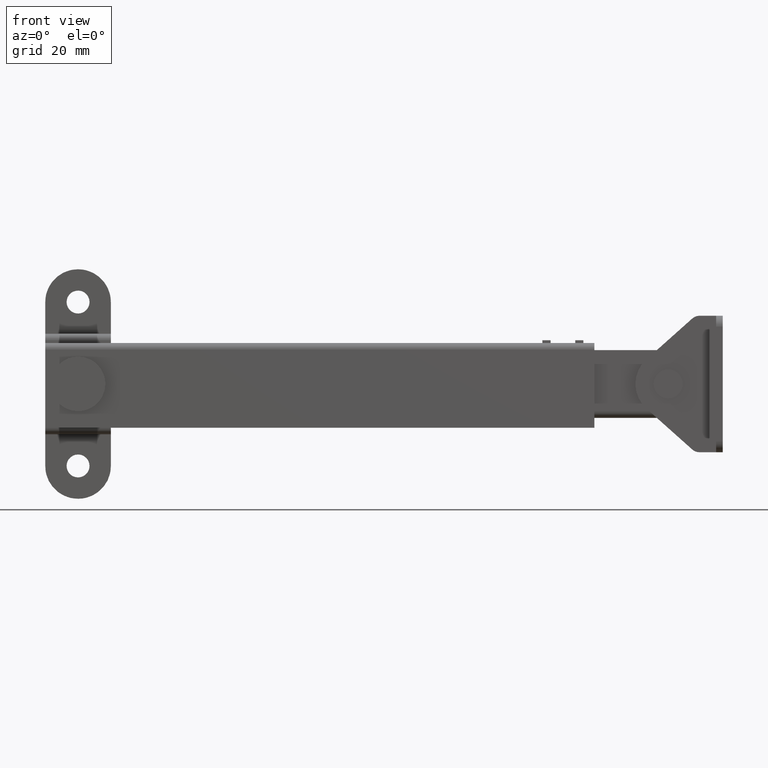
[diagram: clean part render]
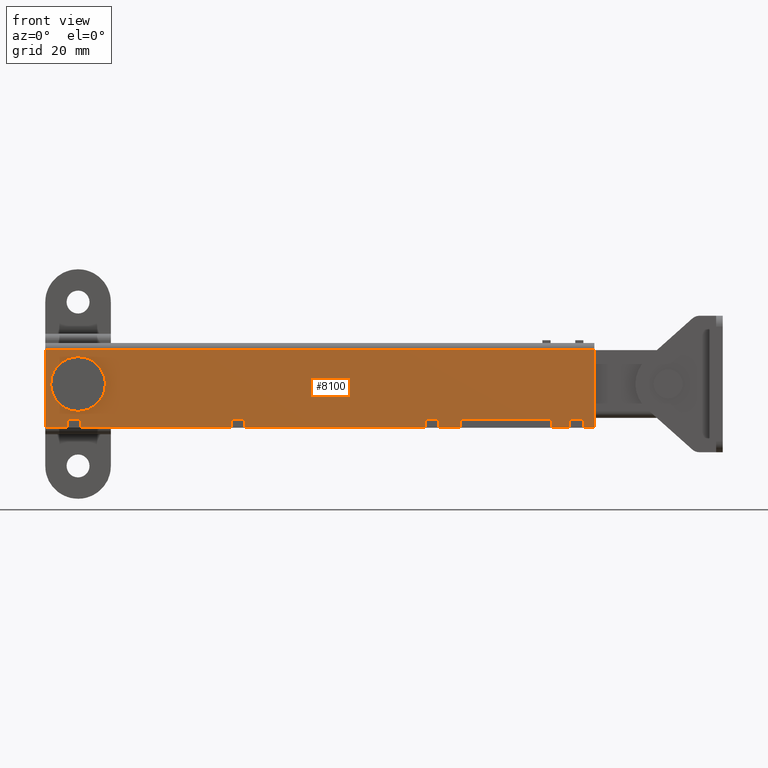
[diagram: same view with one face highlighted and labeled with its STEP entity id]
A machine part, front view. The second image highlights one B-rep face of the part: STEP entity #8100.
In plain terms, the highlighted face is a freeform B-spline surface patch.
Its self-contained STEP definition (entity closure, byte-faithful):
#7002=CARTESIAN_POINT('',(2.753418121982758,-15.749999999997950,2.901497069218899));
#7003=VERTEX_POINT('',#7002);
#7009=CARTESIAN_POINT('',(-1.136868E-013,-15.749999999997950,3.999999999998598));
#7010=VERTEX_POINT('',#7009);
#7011=CARTESIAN_POINT('',(-1.136868E-013,-15.749999999997950,3.999999999998598));
#7012=CARTESIAN_POINT('',(0.284708409647732,-15.749999999997939,4.000037275337659));
#7013=CARTESIAN_POINT('',(0.885742899777154,-15.749999999997989,3.935580093335195));
#7014=CARTESIAN_POINT('',(1.849497873052460,-15.749999999997909,3.603261357454560));
#7015=CARTESIAN_POINT('',(2.455218073645413,-15.749999999997980,3.184709459252220));
#7016=CARTESIAN_POINT('',(2.753418121982758,-15.749999999997950,2.901497069218899));
#7017=B_SPLINE_CURVE_WITH_KNOTS('',3,(#7011,#7012,#7013,#7014,#7015,#7016),.UNSPECIFIED.,.F.,.U.,(4,1,1,4),(0.000000020142276,0.854140583147335,1.803184962017123,3.036944103292220),.UNSPECIFIED.);
#7018=EDGE_CURVE('',#7010,#7003,#7017,.T.);
#7020=CARTESIAN_POINT('',(-3.999999999875321,-15.749999999997950,0.000001703742121));
#7021=VERTEX_POINT('',#7020);
#7022=CARTESIAN_POINT('',(-3.999999999875321,-15.749999999997950,0.000001703742121));
#7023=CARTESIAN_POINT('',(-4.000200919819712,-15.749999999997950,0.409081254723286));
#7024=CARTESIAN_POINT('',(-3.873412104805334,-15.749999999997961,1.227111714050110));
#7025=CARTESIAN_POINT('',(-3.344140223194023,-15.749999999998000,2.295138144838513));
#7026=CARTESIAN_POINT('',(-2.534919107768705,-15.749999999997810,3.166197705209155));
#7027=CARTESIAN_POINT('',(-1.423252003678839,-15.749999999997989,3.823309282277119));
#7028=CARTESIAN_POINT('',(-0.507297379341081,-15.749999999997900,4.000478486234480));
#7029=CARTESIAN_POINT('',(-1.136868E-013,-15.749999999997950,3.999999999998598));
#7030=B_SPLINE_CURVE_WITH_KNOTS('',3,(#7022,#7023,#7024,#7025,#7026,#7027,#7028,#7029),.UNSPECIFIED.,.F.,.U.,(4,1,1,1,1,4),(0.000000170140678,1.227186457031172,2.454411881155610,3.534287596504247,4.761505688452236,6.283223771128421),.UNSPECIFIED.);
#7031=EDGE_CURVE('',#7021,#7010,#7030,.T.);
#7033=CARTESIAN_POINT('',(-2.753418121982993,-15.749999999997950,-2.901497068972853));
#7034=VERTEX_POINT('',#7033);
#7035=CARTESIAN_POINT('',(-2.753418121982993,-15.749999999997950,-2.901497068972853));
#7036=CARTESIAN_POINT('',(-3.134044696954433,-15.749999999997970,-2.541009103002391));
#7037=CARTESIAN_POINT('',(-3.620607376855628,-15.749999999997890,-1.850795577253303));
#7038=CARTESIAN_POINT('',(-3.946756084092354,-15.749999999998010,-0.811547403682275));
#7039=CARTESIAN_POINT('',(-4.000022809587732,-15.749999999997890,-0.253616146144049));
#7040=CARTESIAN_POINT('',(-3.999999999875321,-15.749999999997950,0.000001703742121));
#7041=B_SPLINE_CURVE_WITH_KNOTS('',3,(#7035,#7036,#7037,#7038,#7039,#7040),.UNSPECIFIED.,.F.,.U.,(4,1,1,4),(0.000000047716615,1.572470633339956,2.485475994239147,3.246335534880955),.UNSPECIFIED.);
#7042=EDGE_CURVE('',#7034,#7021,#7041,.T.);
#7072=CARTESIAN_POINT('',(-1.136868E-013,-15.749999999997950,-3.999999999752543));
#7073=VERTEX_POINT('',#7072);
#7074=CARTESIAN_POINT('',(-1.136868E-013,-15.749999999997950,-3.999999999752543));
#7075=CARTESIAN_POINT('',(-0.411264258147782,-15.749999999997961,-4.000205008290513));
#7076=CARTESIAN_POINT('',(-1.138732512561134,-15.749999999997950,-3.886779009131525));
#7077=CARTESIAN_POINT('',(-2.066582658248072,-15.749999999997970,-3.464491391941102));
#7078=CARTESIAN_POINT('',(-2.546924802922293,-15.749999999997931,-3.097500168427930));
#7079=CARTESIAN_POINT('',(-2.753418121982993,-15.749999999997950,-2.901497068972853));
#7080=B_SPLINE_CURVE_WITH_KNOTS('',3,(#7074,#7075,#7076,#7077,#7078,#7079),.UNSPECIFIED.,.F.,.U.,(4,1,1,4),(0.000000020142306,1.233759161455220,2.182803540293925,3.036944103292226),.UNSPECIFIED.);
#7081=EDGE_CURVE('',#7073,#7034,#7080,.T.);
#7083=CARTESIAN_POINT('',(3.999999999875094,-15.749999999997950,-0.000001703496115));
#7084=VERTEX_POINT('',#7083);
#7085=CARTESIAN_POINT('',(3.999999999875094,-15.749999999997950,-0.000001703496115));
#7086=CARTESIAN_POINT('',(4.000029805100577,-15.749999999997980,-0.261795160728750));
#7087=CARTESIAN_POINT('',(3.946800954377870,-15.749999999997920,-0.801744131857732));
#7088=CARTESIAN_POINT('',(3.674081488832151,-15.749999999997950,-1.681763544473790));
#7089=CARTESIAN_POINT('',(3.141984373990101,-15.749999999998050,-2.557402886848257));
#7090=CARTESIAN_POINT('',(2.367664342568901,-15.749999999997939,-3.276562241786095));
#7091=CARTESIAN_POINT('',(1.325029778557115,-15.749999999997931,-3.842151879929410));
#7092=CARTESIAN_POINT('',(0.507329644821028,-15.749999999997950,-4.000530416178378));
#7093=CARTESIAN_POINT('',(-1.136868E-013,-15.749999999997950,-3.999999999752543));
#7094=B_SPLINE_CURVE_WITH_KNOTS('',3,(#7085,#7086,#7087,#7088,#7089,#7090,#7091,#7092,#7093),.UNSPECIFIED.,.F.,.U.,(4,1,1,1,1,1,4),(0.000000170140336,0.785382450393880,1.619894116930833,2.748937519952476,3.828813094562376,4.761505688452183,6.283223771128391),.UNSPECIFIED.);
#7095=EDGE_CURVE('',#7084,#7073,#7094,.T.);
#7097=CARTESIAN_POINT('',(2.753418121982758,-15.749999999997950,2.901497069218899));
#7098=CARTESIAN_POINT('',(3.023361710716601,-15.749999999998030,2.645545221596865));
#7099=CARTESIAN_POINT('',(3.384529651104571,-15.749999999997851,2.191158926468680));
#7100=CARTESIAN_POINT('',(3.863097474312279,-15.749999999998010,1.217072800822163));
#7101=CARTESIAN_POINT('',(4.000479284892311,-15.749999999997870,0.507329373132804));
#7102=CARTESIAN_POINT('',(3.999999999875094,-15.749999999997950,-0.000001703496115));
#7103=B_SPLINE_CURVE_WITH_KNOTS('',3,(#7097,#7098,#7099,#7100,#7101,#7102),.UNSPECIFIED.,.F.,.U.,(4,1,1,4),(0.000000047716600,1.115937064003553,1.724609580836624,3.246335534880999),.UNSPECIFIED.);
#7104=EDGE_CURVE('',#7003,#7084,#7103,.T.);
#7503=CARTESIAN_POINT('',(-6.0,-15.749999999997950,6.300000000045630));
#7504=VERTEX_POINT('',#7503);
#7517=CARTESIAN_POINT('',(94.500000000000000,-15.749999999997950,6.300000000045630));
#7518=VERTEX_POINT('',#7517);
#7519=CARTESIAN_POINT('',(94.500000000000000,-15.749999999997950,6.300000000045630));
#7520=CARTESIAN_POINT('',(-6.0,-15.749999999997950,6.300000000045630));
#7521=QUASI_UNIFORM_CURVE('',1,(#7519,#7520),.UNSPECIFIED.,.F.,.U.);
#7522=EDGE_CURVE('',#7518,#7504,#7521,.T.);
#7925=CARTESIAN_POINT('',(-11.019974805211490,-15.749999999997950,7.014284972337412));
#7926=CARTESIAN_POINT('',(-11.019974805211490,-15.749999999997950,-8.714285355961351));
#7927=CARTESIAN_POINT('',(99.519977500831573,-15.749999999997950,7.014284972337412));
#7928=CARTESIAN_POINT('',(99.519977500831573,-15.749999999997950,-8.714285355961351));
#7929=B_SPLINE_SURFACE_WITH_KNOTS('',1,1,((#7925,#7927),(#7926,#7928)),.UNSPECIFIED.,.F.,.F.,.U.,(2,2),(2,2),(0.0,15.728570328298771),(0.0,110.539952306043110),.UNSPECIFIED.);
#7930=CARTESIAN_POINT('',(0.499999999997158,-15.749999999997950,-8.000000000111660));
#7931=VERTEX_POINT('',#7930);
#7932=CARTESIAN_POINT('',(0.499999999996987,-15.749999999997950,-6.400000000036700));
#7933=VERTEX_POINT('',#7932);
#7934=CARTESIAN_POINT('',(0.499999999997158,-15.749999999997950,-8.000000000111660));
#7935=CARTESIAN_POINT('',(0.499999999996987,-15.749999999997950,-6.400000000036700));
#7936=QUASI_UNIFORM_CURVE('',1,(#7934,#7935),.UNSPECIFIED.,.F.,.U.);
#7937=EDGE_CURVE('',#7931,#7933,#7936,.T.);
#7938=ORIENTED_EDGE('',*,*,#7937,.F.);
#7939=CARTESIAN_POINT('',(28.000000000048601,-15.749999999997950,-8.000000000089500));
#7940=VERTEX_POINT('',#7939);
#7941=CARTESIAN_POINT('',(28.000000000048601,-15.749999999997950,-8.000000000089500));
#7942=CARTESIAN_POINT('',(0.499999999997158,-15.749999999997950,-8.000000000111660));
#7943=QUASI_UNIFORM_CURVE('',1,(#7941,#7942),.UNSPECIFIED.,.F.,.U.);
#7944=EDGE_CURVE('',#7940,#7931,#7943,.T.);
#7945=ORIENTED_EDGE('',*,*,#7944,.F.);
#7946=CARTESIAN_POINT('',(28.000000000055248,-15.749999999997950,-6.400000000023801));
#7947=VERTEX_POINT('',#7946);
#7948=CARTESIAN_POINT('',(28.000000000048601,-15.749999999997950,-8.000000000089500));
#7949=CARTESIAN_POINT('',(28.000000000055248,-15.749999999997950,-6.400000000023801));
#7950=QUASI_UNIFORM_CURVE('',1,(#7948,#7949),.UNSPECIFIED.,.F.,.U.);
#7951=EDGE_CURVE('',#7940,#7947,#7950,.T.);
#7952=ORIENTED_EDGE('',*,*,#7951,.T.);
#7953=CARTESIAN_POINT('',(30.499999999996952,-15.749999999997950,-6.400000000023710));
#7954=VERTEX_POINT('',#7953);
#7955=CARTESIAN_POINT('',(28.000000000055248,-15.749999999997950,-6.400000000023801));
#7956=CARTESIAN_POINT('',(30.499999999996952,-15.749999999997950,-6.400000000023710));
#7957=QUASI_UNIFORM_CURVE('',1,(#7955,#7956),.UNSPECIFIED.,.F.,.U.);
#7958=EDGE_CURVE('',#7947,#7954,#7957,.T.);
#7959=ORIENTED_EDGE('',*,*,#7958,.T.);
#7960=CARTESIAN_POINT('',(30.499999999997101,-15.749999999997950,-8.000000000087480));
#7961=VERTEX_POINT('',#7960);
#7962=CARTESIAN_POINT('',(30.499999999996952,-15.749999999997950,-6.400000000023710));
#7963=CARTESIAN_POINT('',(30.499999999997101,-15.749999999997950,-8.000000000087480));
#7964=QUASI_UNIFORM_CURVE('',1,(#7962,#7963),.UNSPECIFIED.,.F.,.U.);
#7965=EDGE_CURVE('',#7954,#7961,#7964,.T.);
#7966=ORIENTED_EDGE('',*,*,#7965,.T.);
#7967=CARTESIAN_POINT('',(63.500000000048409,-15.749999999997950,-8.000000000060881));
#7968=VERTEX_POINT('',#7967);
#7969=CARTESIAN_POINT('',(63.500000000048409,-15.749999999997950,-8.000000000060881));
#7970=CARTESIAN_POINT('',(30.499999999997101,-15.749999999997950,-8.000000000087480));
#7971=QUASI_UNIFORM_CURVE('',1,(#7969,#7970),.UNSPECIFIED.,.F.,.U.);
#7972=EDGE_CURVE('',#7968,#7961,#7971,.T.);
#7973=ORIENTED_EDGE('',*,*,#7972,.F.);
#7974=CARTESIAN_POINT('',(63.500000000055103,-15.749999999997950,-6.400000000036700));
#7975=VERTEX_POINT('',#7974);
#7976=CARTESIAN_POINT('',(63.500000000055103,-15.749999999997950,-6.400000000036700));
#7977=CARTESIAN_POINT('',(63.500000000048409,-15.749999999997950,-8.000000000060881));
#7978=QUASI_UNIFORM_CURVE('',1,(#7976,#7977),.UNSPECIFIED.,.F.,.U.);
#7979=EDGE_CURVE('',#7975,#7968,#7978,.T.);
#7980=ORIENTED_EDGE('',*,*,#7979,.F.);
#7981=CARTESIAN_POINT('',(65.999999999996987,-15.749999999997950,-6.400000000036700));
#7982=VERTEX_POINT('',#7981);
#7983=CARTESIAN_POINT('',(65.999999999996987,-15.749999999997950,-6.400000000036700));
#7984=CARTESIAN_POINT('',(63.500000000055103,-15.749999999997950,-6.400000000036700));
#7985=QUASI_UNIFORM_CURVE('',1,(#7983,#7984),.UNSPECIFIED.,.F.,.U.);
#7986=EDGE_CURVE('',#7982,#7975,#7985,.T.);
#7987=ORIENTED_EDGE('',*,*,#7986,.F.);
#7988=CARTESIAN_POINT('',(65.999999999997200,-15.749999999997950,-8.000000000058870));
#7989=VERTEX_POINT('',#7988);
#7990=CARTESIAN_POINT('',(65.999999999997200,-15.749999999997950,-8.000000000058870));
#7991=CARTESIAN_POINT('',(65.999999999996987,-15.749999999997950,-6.400000000036700));
#7992=QUASI_UNIFORM_CURVE('',1,(#7990,#7991),.UNSPECIFIED.,.F.,.U.);
#7993=EDGE_CURVE('',#7989,#7982,#7992,.T.);
#7994=ORIENTED_EDGE('',*,*,#7993,.F.);
#7995=CARTESIAN_POINT('',(69.900000000017812,-15.749999999997950,-8.000000000055730));
#7996=VERTEX_POINT('',#7995);
#7997=CARTESIAN_POINT('',(69.900000000017812,-15.749999999997950,-8.000000000055730));
#7998=CARTESIAN_POINT('',(65.999999999997200,-15.749999999997950,-8.000000000058870));
#7999=QUASI_UNIFORM_CURVE('',1,(#7997,#7998),.UNSPECIFIED.,.F.,.U.);
#8000=EDGE_CURVE('',#7996,#7989,#7999,.T.);
#8001=ORIENTED_EDGE('',*,*,#8000,.F.);
#8002=CARTESIAN_POINT('',(69.900000000020214,-15.749999999997950,-6.400000000036700));
#8003=VERTEX_POINT('',#8002);
#8004=CARTESIAN_POINT('',(69.900000000020214,-15.749999999997950,-6.400000000036700));
#8005=CARTESIAN_POINT('',(69.900000000017812,-15.749999999997950,-8.000000000055730));
#8006=QUASI_UNIFORM_CURVE('',1,(#8004,#8005),.UNSPECIFIED.,.F.,.U.);
#8007=EDGE_CURVE('',#8003,#7996,#8006,.T.);
#8008=ORIENTED_EDGE('',*,*,#8007,.F.);
#8009=CARTESIAN_POINT('',(86.599999999973605,-15.749999999997950,-6.400000000036700));
#8010=VERTEX_POINT('',#8009);
#8011=CARTESIAN_POINT('',(86.599999999973605,-15.749999999997950,-6.400000000036700));
#8012=CARTESIAN_POINT('',(69.900000000020214,-15.749999999997950,-6.400000000036700));
#8013=QUASI_UNIFORM_CURVE('',1,(#8011,#8012),.UNSPECIFIED.,.F.,.U.);
#8014=EDGE_CURVE('',#8010,#8003,#8013,.T.);
#8015=ORIENTED_EDGE('',*,*,#8014,.F.);
#8016=CARTESIAN_POINT('',(86.599999999976689,-15.749999999997950,-8.000000000042270));
#8017=VERTEX_POINT('',#8016);
#8018=CARTESIAN_POINT('',(86.599999999976689,-15.749999999997950,-8.000000000042270));
#8019=CARTESIAN_POINT('',(86.599999999973605,-15.749999999997950,-6.400000000036700));
#8020=QUASI_UNIFORM_CURVE('',1,(#8018,#8019),.UNSPECIFIED.,.F.,.U.);
#8021=EDGE_CURVE('',#8017,#8010,#8020,.T.);
#8022=ORIENTED_EDGE('',*,*,#8021,.F.);
#8023=CARTESIAN_POINT('',(89.999999999997200,-15.749999999997950,-8.000000000039520));
#8024=VERTEX_POINT('',#8023);
#8025=CARTESIAN_POINT('',(89.999999999997200,-15.749999999997950,-8.000000000039520));
#8026=CARTESIAN_POINT('',(86.599999999976689,-15.749999999997950,-8.000000000042270));
#8027=QUASI_UNIFORM_CURVE('',1,(#8025,#8026),.UNSPECIFIED.,.F.,.U.);
#8028=EDGE_CURVE('',#8024,#8017,#8027,.T.);
#8029=ORIENTED_EDGE('',*,*,#8028,.F.);
#8030=CARTESIAN_POINT('',(89.999999999996902,-15.749999999997950,-6.400000000023801));
#8031=VERTEX_POINT('',#8030);
#8032=CARTESIAN_POINT('',(89.999999999997200,-15.749999999997950,-8.000000000039520));
#8033=CARTESIAN_POINT('',(89.999999999996902,-15.749999999997950,-6.400000000023801));
#8034=QUASI_UNIFORM_CURVE('',1,(#8032,#8033),.UNSPECIFIED.,.F.,.U.);
#8035=EDGE_CURVE('',#8024,#8031,#8034,.T.);
#8036=ORIENTED_EDGE('',*,*,#8035,.T.);
#8037=CARTESIAN_POINT('',(92.499999999996902,-15.749999999997950,-6.400000000023801));
#8038=VERTEX_POINT('',#8037);
#8039=CARTESIAN_POINT('',(89.999999999996902,-15.749999999997950,-6.400000000023801));
#8040=CARTESIAN_POINT('',(92.499999999996902,-15.749999999997950,-6.400000000023801));
#8041=QUASI_UNIFORM_CURVE('',1,(#8039,#8040),.UNSPECIFIED.,.F.,.U.);
#8042=EDGE_CURVE('',#8031,#8038,#8041,.T.);
#8043=ORIENTED_EDGE('',*,*,#8042,.T.);
#8044=CARTESIAN_POINT('',(92.499999999997300,-15.749999999997950,-8.000000000037510));
#8045=VERTEX_POINT('',#8044);
#8046=CARTESIAN_POINT('',(92.499999999996902,-15.749999999997950,-6.400000000023801));
#8047=CARTESIAN_POINT('',(92.499999999997300,-15.749999999997950,-8.000000000037510));
#8048=QUASI_UNIFORM_CURVE('',1,(#8046,#8047),.UNSPECIFIED.,.F.,.U.);
#8049=EDGE_CURVE('',#8038,#8045,#8048,.T.);
#8050=ORIENTED_EDGE('',*,*,#8049,.T.);
#8051=CARTESIAN_POINT('',(94.500000000000000,-15.749999999997950,-7.999999999983709));
#8052=VERTEX_POINT('',#8051);
#8053=CARTESIAN_POINT('',(94.500000000000000,-15.749999999997950,-7.999999999983709));
#8054=CARTESIAN_POINT('',(92.499999999997300,-15.749999999997950,-8.000000000037510));
#8055=QUASI_UNIFORM_CURVE('',1,(#8053,#8054),.UNSPECIFIED.,.F.,.U.);
#8056=EDGE_CURVE('',#8052,#8045,#8055,.T.);
#8057=ORIENTED_EDGE('',*,*,#8056,.F.);
#8058=CARTESIAN_POINT('',(94.500000000000000,-15.749999999997950,-7.999999999983709));
#8059=CARTESIAN_POINT('',(94.500000000000000,-15.749999999997950,6.300000000045630));
#8060=QUASI_UNIFORM_CURVE('',1,(#8058,#8059),.UNSPECIFIED.,.F.,.U.);
#8061=EDGE_CURVE('',#8052,#7518,#8060,.T.);
#8062=ORIENTED_EDGE('',*,*,#8061,.T.);
#8063=ORIENTED_EDGE('',*,*,#7522,.T.);
#8064=CARTESIAN_POINT('',(-6.0,-15.749999999997950,-7.999999999983709));
#8065=VERTEX_POINT('',#8064);
#8066=CARTESIAN_POINT('',(-6.0,-15.749999999997950,-7.999999999983709));
#8067=CARTESIAN_POINT('',(-6.0,-15.749999999997950,6.300000000045630));
#8068=QUASI_UNIFORM_CURVE('',1,(#8066,#8067),.UNSPECIFIED.,.F.,.U.);
#8069=EDGE_CURVE('',#8065,#7504,#8068,.T.);
#8070=ORIENTED_EDGE('',*,*,#8069,.F.);
#8071=CARTESIAN_POINT('',(-2.000000000002845,-15.749999999997950,-8.000000000113680));
#8072=VERTEX_POINT('',#8071);
#8073=CARTESIAN_POINT('',(-2.000000000002845,-15.749999999997950,-8.000000000113680));
#8074=CARTESIAN_POINT('',(-6.0,-15.749999999997950,-7.999999999983709));
#8075=QUASI_UNIFORM_CURVE('',1,(#8073,#8074),.UNSPECIFIED.,.F.,.U.);
#8076=EDGE_CURVE('',#8072,#8065,#8075,.T.);
#8077=ORIENTED_EDGE('',*,*,#8076,.F.);
#8078=CARTESIAN_POINT('',(-2.000000000003115,-15.749999999997950,-6.400000000036700));
#8079=VERTEX_POINT('',#8078);
#8080=CARTESIAN_POINT('',(-2.000000000003115,-15.749999999997950,-6.400000000036700));
#8081=CARTESIAN_POINT('',(-2.000000000002845,-15.749999999997950,-8.000000000113680));
#8082=QUASI_UNIFORM_CURVE('',1,(#8080,#8081),.UNSPECIFIED.,.F.,.U.);
#8083=EDGE_CURVE('',#8079,#8072,#8082,.T.);
#8084=ORIENTED_EDGE('',*,*,#8083,.F.);
#8085=CARTESIAN_POINT('',(0.499999999996987,-15.749999999997950,-6.400000000036700));
#8086=CARTESIAN_POINT('',(-2.000000000003115,-15.749999999997950,-6.400000000036700));
#8087=QUASI_UNIFORM_CURVE('',1,(#8085,#8086),.UNSPECIFIED.,.F.,.U.);
#8088=EDGE_CURVE('',#7933,#8079,#8087,.T.);
#8089=ORIENTED_EDGE('',*,*,#8088,.F.);
#8090=EDGE_LOOP('',(#7938,#7945,#7952,#7959,#7966,#7973,#7980,#7987,#7994,#8001,#8008,#8015,#8022,#8029,#8036,#8043,#8050,#8057,#8062,#8063,#8070,#8077,#8084,#8089));
#8091=FACE_OUTER_BOUND('',#8090,.T.);
#8092=ORIENTED_EDGE('',*,*,#7031,.T.);
#8093=ORIENTED_EDGE('',*,*,#7018,.T.);
#8094=ORIENTED_EDGE('',*,*,#7104,.T.);
#8095=ORIENTED_EDGE('',*,*,#7095,.T.);
#8096=ORIENTED_EDGE('',*,*,#7081,.T.);
#8097=ORIENTED_EDGE('',*,*,#7042,.T.);
#8098=EDGE_LOOP('',(#8092,#8093,#8094,#8095,#8096,#8097));
#8099=FACE_BOUND('',#8098,.T.);
#8100=ADVANCED_FACE('',(#8091,#8099),#7929,.T.);